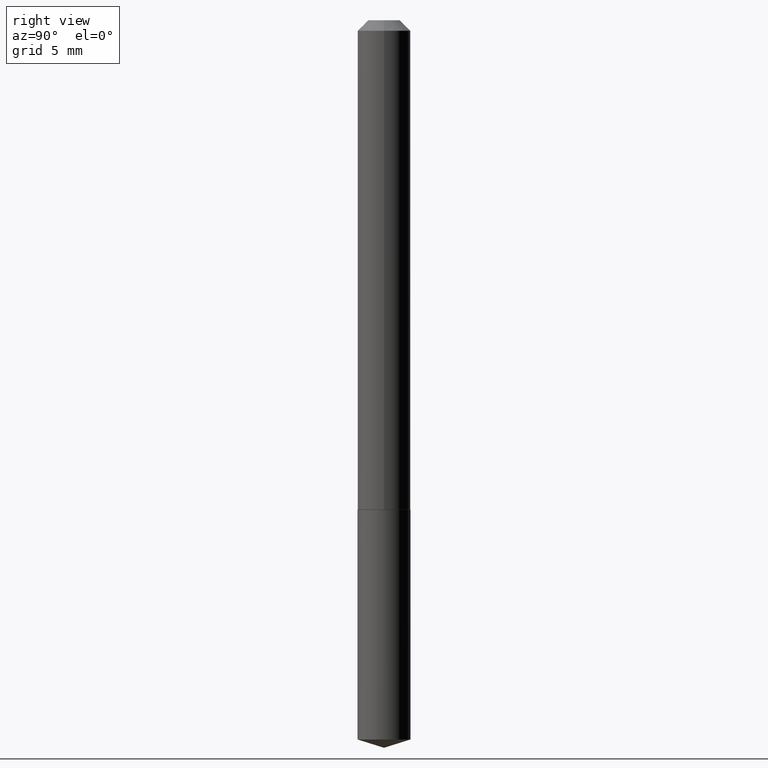
[diagram: clean part render]
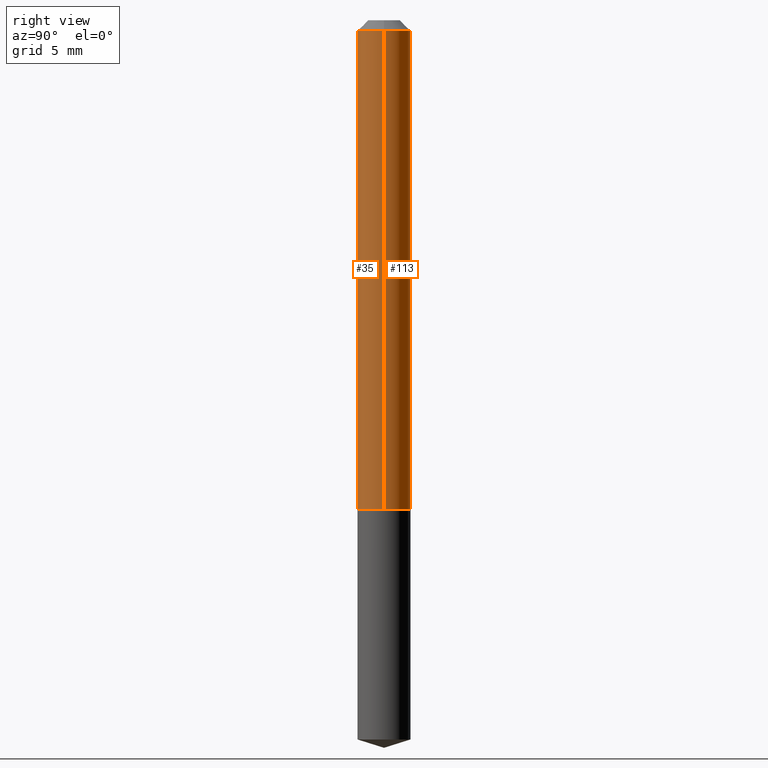
[diagram: same view with one multi-face feature highlighted, each face labeled with its STEP entity id]
A machine part, right view. The highlighted faces form ONE feature: a constant-radius fillet chain: 2 tangent blend faces with common blend radius 2.0003 mm. The faces share edges in the B-rep.
Their STEP definitions:
[1] entity #35 (Cylinder):
#7 = ORIENTED_EDGE ( 'NONE', *, *, #195, .T. ) ;
#15 = CYLINDRICAL_SURFACE ( 'NONE', #227, 0.07875000000000008382 ) ;
#16 = CARTESIAN_POINT ( 'NONE',  ( 0.000000000000000000, 0.000000000000000000, 0.000000000000000000 ) ) ;
#20 = DIRECTION ( 'NONE',  ( -2.445468806185136597E-29, 3.491481338843145583E-15, 1.000000000000000000 ) ) ;
#21 = ORIENTED_EDGE ( 'NONE', *, *, #224, .F. ) ;
#22 = DIRECTION ( 'NONE',  ( -2.445468806185136877E-29, 3.491481338843145188E-15, 1.000000000000000000 ) ) ;
#26 = LINE ( 'NONE', #62, #198 ) ;
#35 = ADVANCED_FACE ( 'NONE', ( #133 ), #15, .T. ) ;
#38 = VERTEX_POINT ( 'NONE', #256 ) ;
#58 = EDGE_LOOP ( 'NONE', ( #21, #238, #7, #87 ) ) ;
#62 = CARTESIAN_POINT ( 'NONE',  ( -0.07875000000000008382, 5.595524044110794920E-16, -3.873661383575742696E-30 ) ) ;
#67 = VECTOR ( 'NONE', #22, 39.37007874015748143 ) ;
#84 = LINE ( 'NONE', #239, #67 ) ;
#87 = ORIENTED_EDGE ( 'NONE', *, *, #314, .F. ) ;
#93 = CARTESIAN_POINT ( 'NONE',  ( -0.07875000000000016709, -4.525091869346193652E-15, -1.456300000000000150 ) ) ;
#104 = DIRECTION ( 'NONE',  ( 1.000000000000000000, -6.982962677686267499E-15, 4.876176775795935232E-29 ) ) ;
#109 = CARTESIAN_POINT ( 'NONE',  ( -0.07875000000000000056, -2.037324128386980792E-15, -0.03125000000000019429 ) ) ;
#111 = DIRECTION ( 'NONE',  ( -2.445468806185136877E-29, 3.491481338843145188E-15, 1.000000000000000000 ) ) ;
#114 = VERTEX_POINT ( 'NONE', #200 ) ;
#116 = VERTEX_POINT ( 'NONE', #109 ) ;
#133 = FACE_OUTER_BOUND ( 'NONE', #58, .T. ) ;
#165 = CIRCLE ( 'NONE', #388, 0.07875000000000016709 ) ;
#184 = DIRECTION ( 'NONE',  ( -2.445468806185136597E-29, 3.491481338843145583E-15, 1.000000000000000000 ) ) ;
#185 = AXIS2_PLACEMENT_3D ( 'NONE', #211, #184, #296 ) ;
#195 = EDGE_CURVE ( 'NONE', #38, #114, #84, .T. ) ;
#198 = VECTOR ( 'NONE', #111, 39.37007874015748143 ) ;
#200 = CARTESIAN_POINT ( 'NONE',  ( 0.07875000000000000056, -6.590171027066424463E-16, -0.03125000000000019429 ) ) ;
#211 = CARTESIAN_POINT ( 'NONE',  ( 7.642090019328599159E-31, -1.091087918388489774E-16, -0.03125000000000019429 ) ) ;
#217 = DIRECTION ( 'NONE',  ( 1.000000000000000000, -6.982962677686271444E-15, 0.000000000000000000 ) ) ;
#224 = EDGE_CURVE ( 'NONE', #248, #116, #26, .T. ) ;
#227 = AXIS2_PLACEMENT_3D ( 'NONE', #16, #20, #104 ) ;
#238 = ORIENTED_EDGE ( 'NONE', *, *, #360, .T. ) ;
#239 = CARTESIAN_POINT ( 'NONE',  ( 0.07875000000000008382, -5.499083108677941345E-16, 3.839989210939303220E-30 ) ) ;
#248 = VERTEX_POINT ( 'NONE', #93 ) ;
#256 = CARTESIAN_POINT ( 'NONE',  ( 0.07875000000000016709, -5.634552584625068955E-15, -1.456300000000000150 ) ) ;
#272 = CARTESIAN_POINT ( 'NONE',  ( 3.561336222447415458E-29, -5.084644273757274032E-15, -1.456300000000000150 ) ) ;
#296 = DIRECTION ( 'NONE',  ( 1.000000000000000000, -6.982962677686265922E-15, 0.000000000000000000 ) ) ;
#302 = DIRECTION ( 'NONE',  ( -2.445468806185136597E-29, 3.491481338843145583E-15, 1.000000000000000000 ) ) ;
#314 = EDGE_CURVE ( 'NONE', #116, #114, #351, .T. ) ;
#351 = CIRCLE ( 'NONE', #185, 0.07875000000000000056 ) ;
#360 = EDGE_CURVE ( 'NONE', #248, #38, #165, .T. ) ;
#388 = AXIS2_PLACEMENT_3D ( 'NONE', #272, #302, #217 ) ;
[2] entity #113 (Cylinder):
#18 = FACE_OUTER_BOUND ( 'NONE', #54, .T. ) ;
#22 = DIRECTION ( 'NONE',  ( -2.445468806185136877E-29, 3.491481338843145188E-15, 1.000000000000000000 ) ) ;
#26 = LINE ( 'NONE', #62, #198 ) ;
#32 = DIRECTION ( 'NONE',  ( -2.445468806185136597E-29, 3.491481338843145583E-15, 1.000000000000000000 ) ) ;
#38 = VERTEX_POINT ( 'NONE', #256 ) ;
#39 = CARTESIAN_POINT ( 'NONE',  ( 3.561336222447415458E-29, -5.084644273757274032E-15, -1.456300000000000150 ) ) ;
#54 = EDGE_LOOP ( 'NONE', ( #300, #110, #359, #99 ) ) ;
#62 = CARTESIAN_POINT ( 'NONE',  ( -0.07875000000000008382, 5.595524044110794920E-16, -3.873661383575742696E-30 ) ) ;
#67 = VECTOR ( 'NONE', #22, 39.37007874015748143 ) ;
#84 = LINE ( 'NONE', #239, #67 ) ;
#93 = CARTESIAN_POINT ( 'NONE',  ( -0.07875000000000016709, -4.525091869346193652E-15, -1.456300000000000150 ) ) ;
#99 = ORIENTED_EDGE ( 'NONE', *, *, #195, .F. ) ;
#109 = CARTESIAN_POINT ( 'NONE',  ( -0.07875000000000000056, -2.037324128386980792E-15, -0.03125000000000019429 ) ) ;
#110 = ORIENTED_EDGE ( 'NONE', *, *, #224, .T. ) ;
#111 = DIRECTION ( 'NONE',  ( -2.445468806185136877E-29, 3.491481338843145188E-15, 1.000000000000000000 ) ) ;
#113 = ADVANCED_FACE ( 'NONE', ( #18 ), #136, .T. ) ;
#114 = VERTEX_POINT ( 'NONE', #200 ) ;
#116 = VERTEX_POINT ( 'NONE', #109 ) ;
#136 = CYLINDRICAL_SURFACE ( 'NONE', #345, 0.07875000000000008382 ) ;
#161 = DIRECTION ( 'NONE',  ( -2.445468806185136597E-29, 3.491481338843145583E-15, 1.000000000000000000 ) ) ;
#191 = DIRECTION ( 'NONE',  ( 1.000000000000000000, -6.982962677686271444E-15, 0.000000000000000000 ) ) ;
#195 = EDGE_CURVE ( 'NONE', #38, #114, #84, .T. ) ;
#198 = VECTOR ( 'NONE', #111, 39.37007874015748143 ) ;
#200 = CARTESIAN_POINT ( 'NONE',  ( 0.07875000000000000056, -6.590171027066424463E-16, -0.03125000000000019429 ) ) ;
#224 = EDGE_CURVE ( 'NONE', #248, #116, #26, .T. ) ;
#229 = DIRECTION ( 'NONE',  ( -2.445468806185136597E-29, 3.491481338843145583E-15, 1.000000000000000000 ) ) ;
#239 = CARTESIAN_POINT ( 'NONE',  ( 0.07875000000000008382, -5.499083108677941345E-16, 3.839989210939303220E-30 ) ) ;
#243 = DIRECTION ( 'NONE',  ( 1.000000000000000000, -6.982962677686265922E-15, 0.000000000000000000 ) ) ;
#248 = VERTEX_POINT ( 'NONE', #93 ) ;
#256 = CARTESIAN_POINT ( 'NONE',  ( 0.07875000000000016709, -5.634552584625068955E-15, -1.456300000000000150 ) ) ;
#261 = AXIS2_PLACEMENT_3D ( 'NONE', #39, #161, #191 ) ;
#277 = AXIS2_PLACEMENT_3D ( 'NONE', #294, #32, #243 ) ;
#288 = EDGE_CURVE ( 'NONE', #114, #116, #368, .T. ) ;
#294 = CARTESIAN_POINT ( 'NONE',  ( 7.642090019328599159E-31, -1.091087918388489774E-16, -0.03125000000000019429 ) ) ;
#300 = ORIENTED_EDGE ( 'NONE', *, *, #385, .T. ) ;
#319 = CIRCLE ( 'NONE', #261, 0.07875000000000016709 ) ;
#345 = AXIS2_PLACEMENT_3D ( 'NONE', #376, #229, #348 ) ;
#348 = DIRECTION ( 'NONE',  ( 1.000000000000000000, -6.982962677686267499E-15, 4.876176775795935232E-29 ) ) ;
#359 = ORIENTED_EDGE ( 'NONE', *, *, #288, .F. ) ;
#368 = CIRCLE ( 'NONE', #277, 0.07875000000000000056 ) ;
#376 = CARTESIAN_POINT ( 'NONE',  ( 0.000000000000000000, 0.000000000000000000, 0.000000000000000000 ) ) ;
#385 = EDGE_CURVE ( 'NONE', #38, #248, #319, .T. ) ;